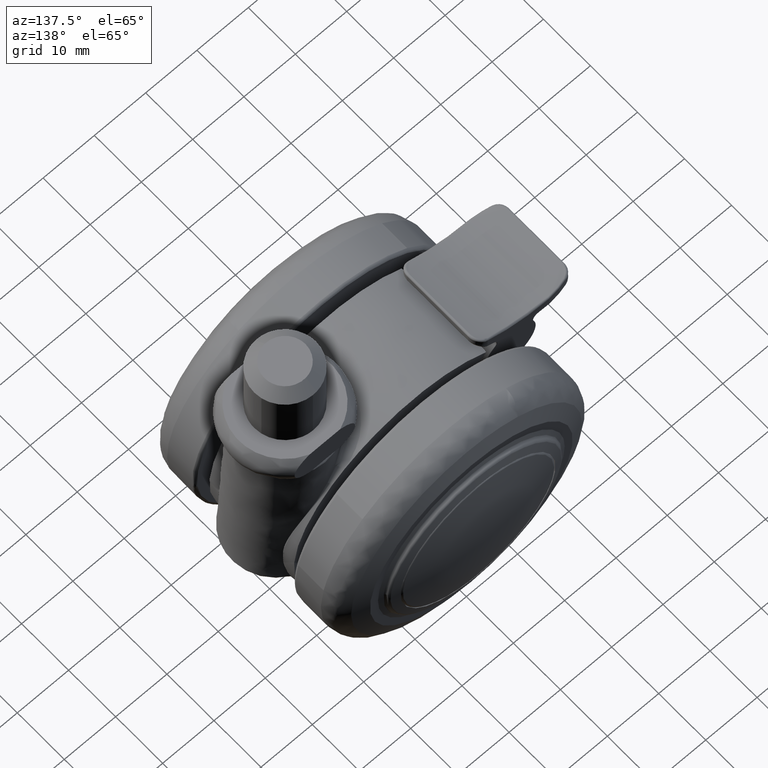
[diagram: clean part render]
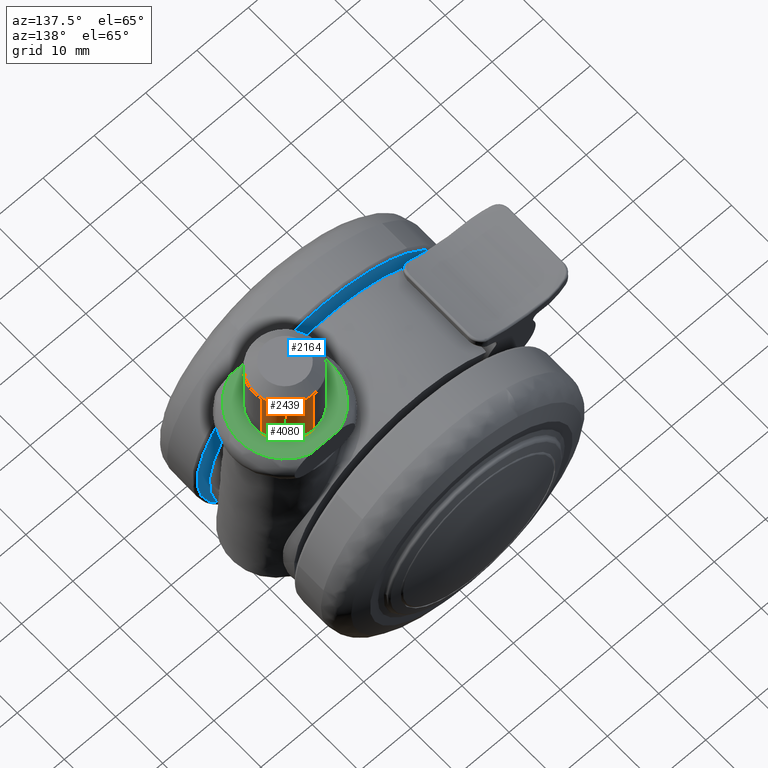
[diagram: same view with three faces highlighted in distinct colors, each labeled with its STEP entity id]
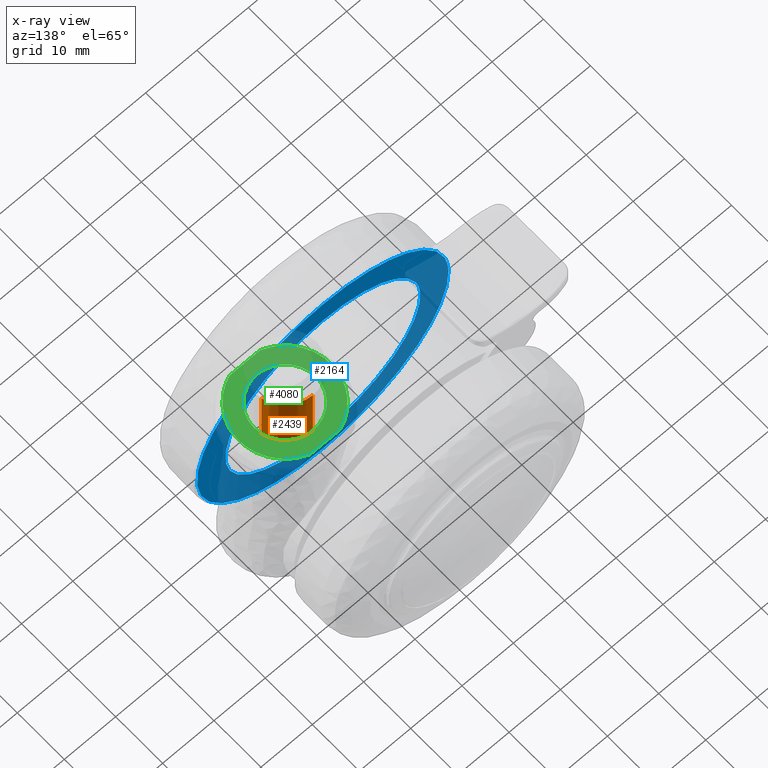
[diagram: x-ray of the same camera — body ghosted, the three highlighted faces saturated]
A machine part, auxiliary view with three faces highlighted in distinct colors.
The next image is the same camera in x-ray (body ghosted, the three faces saturated) — at least one of them is partly hidden behind the body in this view.
Their STEP definitions:

[orange] entity #2439 — the highlighted face is a freeform B-spline surface patch.
#2250=CARTESIAN_POINT('',(22.845308919070330,1.353648270651160,44.500000000000000));
#2251=VERTEX_POINT('',#2250);
#2314=CARTESIAN_POINT('',(17.052359213184239,5.999771538383330,44.500000000000000));
#2315=VERTEX_POINT('',#2314);
#2331=CARTESIAN_POINT('',(17.052359213090241,5.999771538384151,32.500000002522903));
#2332=VERTEX_POINT('',#2331);
#2333=CARTESIAN_POINT('',(17.052359213184239,5.999771538383330,44.500000000000000));
#2334=CARTESIAN_POINT('',(17.052359213090241,5.999771538384151,32.500000002522903));
#2335=QUASI_UNIFORM_CURVE('',1,(#2333,#2334),.UNSPECIFIED.,.F.,.U.);
#2336=EDGE_CURVE('',#2315,#2332,#2335,.T.);
#2372=CARTESIAN_POINT('',(22.845308919053540,1.353648270723666,32.500000002522903));
#2373=VERTEX_POINT('',#2372);
#2387=CARTESIAN_POINT('',(22.845308919070330,1.353648270651160,44.500000000000000));
#2388=CARTESIAN_POINT('',(22.845308919053540,1.353648270723666,32.500000002522903));
#2389=QUASI_UNIFORM_CURVE('',1,(#2387,#2388),.UNSPECIFIED.,.F.,.U.);
#2390=EDGE_CURVE('',#2251,#2373,#2389,.T.);
#2395=CARTESIAN_POINT('',(17.052359212990240,5.999771538385023,44.799999999936936));
#2396=CARTESIAN_POINT('',(21.778918510904578,5.958523480286943,44.799999999936936));
#2397=CARTESIAN_POINT('',(22.845308919071552,1.353648270645879,44.799999999936929));
#2398=CARTESIAN_POINT('',(17.052359212990240,5.999771538385023,32.192500002587543));
#2399=CARTESIAN_POINT('',(21.778918510904578,5.958523480286943,32.192500002587536));
#2400=CARTESIAN_POINT('',(22.845308919071552,1.353648270645879,32.192500002587551));
#2408=(BOUNDED_SURFACE()B_SPLINE_SURFACE(2,1,((#2395,#2398),(#2396,#2399),(#2397,#2400)),.UNSPECIFIED.,.F.,.F.,.U.)B_SPLINE_SURFACE_WITH_KNOTS((3,3),(2,2),(0.0,8.314027998213579),(0.0,12.607499997349390),.UNSPECIFIED.)GEOMETRIC_REPRESENTATION_ITEM()RATIONAL_B_SPLINE_SURFACE(((1.0,1.0),(0.753969696196700,0.753969696196700),(0.921270302782944,0.921270302782944)))REPRESENTATION_ITEM('')SURFACE());
#2409=CARTESIAN_POINT('',(17.052359213184246,5.999771538383330,44.500000000000007));
#2410=CARTESIAN_POINT('',(21.778918510966722,5.958523479980717,44.499999999999986));
#2411=CARTESIAN_POINT('',(22.845308919070323,1.353648270651160,44.500000000000000));
#2419=(BOUNDED_CURVE()B_SPLINE_CURVE(2,(#2409,#2410,#2411),.UNSPECIFIED.,.F.,.U.)B_SPLINE_CURVE_WITH_KNOTS((3,3),(0.251539894346378,0.461422971784314),.UNSPECIFIED.)CURVE()GEOMETRIC_REPRESENTATION_ITEM()RATIONAL_B_SPLINE_CURVE((0.996414028074044,0.753549905445378,0.923556557442306))REPRESENTATION_ITEM(''));
#2420=EDGE_CURVE('',#2315,#2251,#2419,.T.);
#2421=ORIENTED_EDGE('',*,*,#2420,.T.);
#2422=ORIENTED_EDGE('',*,*,#2390,.T.);
#2423=CARTESIAN_POINT('',(22.845308919053537,1.353648270723666,32.500000002522910));
#2424=CARTESIAN_POINT('',(21.778918510811756,5.958523480130185,32.500000002522910));
#2425=CARTESIAN_POINT('',(17.052359213090245,5.999771538384151,32.500000002522903));
#2433=(BOUNDED_CURVE()B_SPLINE_CURVE(2,(#2423,#2424,#2425),.UNSPECIFIED.,.F.,.U.)B_SPLINE_CURVE_WITH_KNOTS((3,3),(0.038577028219736,0.248460105659141),.UNSPECIFIED.)CURVE()GEOMETRIC_REPRESENTATION_ITEM()RATIONAL_B_SPLINE_CURVE((0.923556557435745,0.753549905445593,0.996414028086817))REPRESENTATION_ITEM(''));
#2434=EDGE_CURVE('',#2373,#2332,#2433,.T.);
#2435=ORIENTED_EDGE('',*,*,#2434,.T.);
#2436=ORIENTED_EDGE('',*,*,#2336,.F.);
#2437=EDGE_LOOP('',(#2421,#2422,#2435,#2436));
#2438=FACE_OUTER_BOUND('',#2437,.T.);
#2439=ADVANCED_FACE('',(#2438),#2408,.T.);

[blue] entity #2164 — the highlighted face is a freeform B-spline surface patch.
#692=CARTESIAN_POINT('',(18.867181923865932,-10.499999999999890,-2.242642693717743));
#693=VERTEX_POINT('',#692);
#694=CARTESIAN_POINT('',(0.0,-10.500000000000000,19.0));
#695=VERTEX_POINT('',#694);
#696=CARTESIAN_POINT('',(18.867181923865925,-10.499999999999892,-2.242642693717743));
#697=CARTESIAN_POINT('',(19.000000000000007,-10.499999999999998,-1.125254349962167));
#698=CARTESIAN_POINT('',(19.0,-10.500000000000000,1.789254E-015));
#699=CARTESIAN_POINT('',(18.999999999999993,-10.500000000000002,19.000000000000011));
#700=CARTESIAN_POINT('',(0.0,-10.500000000000000,19.0));
#708=(BOUNDED_CURVE()B_SPLINE_CURVE(2,(#696,#697,#698,#699,#700),.UNSPECIFIED.,.F.,.U.)B_SPLINE_CURVE_WITH_KNOTS((3,2,3),(0.229562543068686,0.250000000000000,0.500000000000000),.UNSPECIFIED.)CURVE()GEOMETRIC_REPRESENTATION_ITEM()RATIONAL_B_SPLINE_CURVE((0.956026890514738,0.976056029820104,1.0,0.707106781186548,1.0))REPRESENTATION_ITEM(''));
#709=EDGE_CURVE('',#693,#695,#708,.T.);
#750=CARTESIAN_POINT('',(-18.964562474849782,-10.500000000000339,1.159900916916154));
#751=VERTEX_POINT('',#750);
#757=CARTESIAN_POINT('',(0.0,-10.500000000000000,19.0));
#758=CARTESIAN_POINT('',(-17.873435415548638,-10.500000000000002,19.0));
#759=CARTESIAN_POINT('',(-18.964562474849775,-10.500000000000339,1.159900916916153));
#767=(BOUNDED_CURVE()B_SPLINE_CURVE(2,(#757,#758,#759),.UNSPECIFIED.,.F.,.U.)B_SPLINE_CURVE_WITH_KNOTS((3,3),(0.500000000000000,0.739333156349081),.UNSPECIFIED.)CURVE()GEOMETRIC_REPRESENTATION_ITEM()RATIONAL_B_SPLINE_CURVE((1.0,0.719603765872537,0.976072457682047))REPRESENTATION_ITEM(''));
#768=EDGE_CURVE('',#695,#751,#767,.T.);
#791=CARTESIAN_POINT('',(0.0,-10.500000000000000,-19.0));
#792=VERTEX_POINT('',#791);
#793=CARTESIAN_POINT('',(0.0,-10.500000000000000,-19.0));
#794=CARTESIAN_POINT('',(16.875322986979157,-10.499999999999998,-19.000000000000004));
#795=CARTESIAN_POINT('',(18.867181923865925,-10.499999999999892,-2.242642693717743));
#803=(BOUNDED_CURVE()B_SPLINE_CURVE(2,(#793,#794,#795),.UNSPECIFIED.,.F.,.U.)B_SPLINE_CURVE_WITH_KNOTS((3,3),(0.0,0.229562543068686),.UNSPECIFIED.)CURVE()GEOMETRIC_REPRESENTATION_ITEM()RATIONAL_B_SPLINE_CURVE((1.0,0.731050751366444,0.956026890514738))REPRESENTATION_ITEM(''));
#804=EDGE_CURVE('',#792,#693,#803,.T.);
#806=CARTESIAN_POINT('',(-18.964562474849775,-10.500000000000339,1.159900916916153));
#807=CARTESIAN_POINT('',(-18.999999999999996,-10.500000000000004,0.580491805641472));
#808=CARTESIAN_POINT('',(-19.0,-10.500000000000000,1.789254E-015));
#809=CARTESIAN_POINT('',(-18.999999999999993,-10.500000000000002,-18.999999999999993));
#810=CARTESIAN_POINT('',(0.0,-10.500000000000000,-19.0));
#818=(BOUNDED_CURVE()B_SPLINE_CURVE(2,(#806,#807,#808,#809,#810),.UNSPECIFIED.,.F.,.U.)B_SPLINE_CURVE_WITH_KNOTS((3,2,3),(0.739333156349081,0.750000000000000,1.0),.UNSPECIFIED.)CURVE()GEOMETRIC_REPRESENTATION_ITEM()RATIONAL_B_SPLINE_CURVE((0.976072457682047,0.987503015314010,1.0,0.707106781186548,1.0))REPRESENTATION_ITEM(''));
#819=EDGE_CURVE('',#751,#792,#818,.T.);
#1646=CARTESIAN_POINT('',(24.440359050783059,-10.500000000000000,-1.708464666819471));
#1647=VERTEX_POINT('',#1646);
#1661=CARTESIAN_POINT('',(0.0,-10.500000000000000,24.500000000000000));
#1662=VERTEX_POINT('',#1661);
#1663=CARTESIAN_POINT('',(24.440359050783059,-10.500000000000005,-1.708464666819471));
#1664=CARTESIAN_POINT('',(24.499999999999996,-10.500000000000002,-0.855273339236765));
#1665=CARTESIAN_POINT('',(24.500000000000000,-10.500000000000000,1.789254E-015));
#1666=CARTESIAN_POINT('',(24.499999999999993,-10.500000000000000,24.499999999999993));
#1667=CARTESIAN_POINT('',(0.0,-10.500000000000000,24.500000000000000));
#1675=(BOUNDED_CURVE()B_SPLINE_CURVE(2,(#1663,#1664,#1665,#1666,#1667),.UNSPECIFIED.,.F.,.U.)B_SPLINE_CURVE_WITH_KNOTS((3,2,3),(0.237833686530839,0.250000000000000,0.500000000000000),.UNSPECIFIED.)CURVE()GEOMETRIC_REPRESENTATION_ITEM()RATIONAL_B_SPLINE_CURVE((0.972879876377981,0.985746277147696,1.0,0.707106781186547,1.0))REPRESENTATION_ITEM(''));
#1676=EDGE_CURVE('',#1647,#1662,#1675,.T.);
#1678=CARTESIAN_POINT('',(-24.498065624780690,-10.500000000000000,0.307867977774401));
#1679=VERTEX_POINT('',#1678);
#1680=CARTESIAN_POINT('',(0.0,-10.500000000000000,24.500000000000000));
#1681=CARTESIAN_POINT('',(-24.194042282517618,-10.500000000000000,24.499999999999986));
#1682=CARTESIAN_POINT('',(-24.498065624780693,-10.500000000000005,0.307867977774401));
#1690=(BOUNDED_CURVE()B_SPLINE_CURVE(2,(#1680,#1681,#1682),.UNSPECIFIED.,.F.,.U.)B_SPLINE_CURVE_WITH_KNOTS((3,3),(0.500000000000000,0.747784295920190),.UNSPECIFIED.)CURVE()GEOMETRIC_REPRESENTATION_ITEM()RATIONAL_B_SPLINE_CURVE((1.0,0.709702639986042,0.994854295640473))REPRESENTATION_ITEM(''));
#1691=EDGE_CURVE('',#1662,#1679,#1690,.T.);
#1738=CARTESIAN_POINT('',(0.0,-10.500000000000000,-24.500000000000000));
#1739=VERTEX_POINT('',#1738);
#1740=CARTESIAN_POINT('',(-24.498065624780693,-10.500000000000005,0.307867977774401));
#1741=CARTESIAN_POINT('',(-24.500000000000000,-10.499999999999998,0.153940065908422));
#1742=CARTESIAN_POINT('',(-24.500000000000000,-10.500000000000000,1.789254E-015));
#1743=CARTESIAN_POINT('',(-24.499999999999993,-10.500000000000000,-24.499999999999993));
#1744=CARTESIAN_POINT('',(0.0,-10.500000000000000,-24.500000000000000));
#1752=(BOUNDED_CURVE()B_SPLINE_CURVE(2,(#1740,#1741,#1742,#1743,#1744),.UNSPECIFIED.,.F.,.U.)B_SPLINE_CURVE_WITH_KNOTS((3,2,3),(0.747784295920190,0.750000000000000,1.0),.UNSPECIFIED.)CURVE()GEOMETRIC_REPRESENTATION_ITEM()RATIONAL_B_SPLINE_CURVE((0.994854295640473,0.997404141200506,1.0,0.707106781186547,1.0))REPRESENTATION_ITEM(''));
#1753=EDGE_CURVE('',#1679,#1739,#1752,.T.);
#1755=CARTESIAN_POINT('',(0.0,-10.500000000000000,-24.500000000000000));
#1756=CARTESIAN_POINT('',(22.847152757460137,-10.500000000000000,-24.499999999999996));
#1757=CARTESIAN_POINT('',(24.440359050783062,-10.500000000000007,-1.708464666819470));
#1765=(BOUNDED_CURVE()B_SPLINE_CURVE(2,(#1755,#1756,#1757),.UNSPECIFIED.,.F.,.U.)B_SPLINE_CURVE_WITH_KNOTS((3,3),(0.0,0.237833686530839),.UNSPECIFIED.)CURVE()GEOMETRIC_REPRESENTATION_ITEM()RATIONAL_B_SPLINE_CURVE((1.0,0.721360504038852,0.972879876377981))REPRESENTATION_ITEM(''));
#1766=EDGE_CURVE('',#1739,#1647,#1765,.T.);
#2147=CARTESIAN_POINT('',(-26.945379779676859,-10.500000000000000,26.947549905028499));
#2148=CARTESIAN_POINT('',(-26.945379779676859,-10.500000000000000,-26.947551219310910));
#2149=CARTESIAN_POINT('',(26.944520475682069,-10.500000000000000,26.947549905028499));
#2150=CARTESIAN_POINT('',(26.944520475682069,-10.500000000000000,-26.947551219310910));
#2151=B_SPLINE_SURFACE_WITH_KNOTS('',1,1,((#2147,#2149),(#2148,#2150)),.UNSPECIFIED.,.F.,.F.,.U.,(2,2),(2,2),(0.0,53.895101124339412),(0.0,53.889900255358917),.UNSPECIFIED.);
#2152=ORIENTED_EDGE('',*,*,#1753,.F.);
#2153=ORIENTED_EDGE('',*,*,#1691,.F.);
#2154=ORIENTED_EDGE('',*,*,#1676,.F.);
#2155=ORIENTED_EDGE('',*,*,#1766,.F.);
#2156=EDGE_LOOP('',(#2152,#2153,#2154,#2155));
#2157=FACE_OUTER_BOUND('',#2156,.T.);
#2158=ORIENTED_EDGE('',*,*,#768,.T.);
#2159=ORIENTED_EDGE('',*,*,#819,.T.);
#2160=ORIENTED_EDGE('',*,*,#804,.T.);
#2161=ORIENTED_EDGE('',*,*,#709,.T.);
#2162=EDGE_LOOP('',(#2158,#2159,#2160,#2161));
#2163=FACE_BOUND('',#2162,.T.);
#2164=ADVANCED_FACE('',(#2157,#2163),#2151,.F.);

[green] entity #4080 — the highlighted face is a freeform B-spline surface patch.
#2331=CARTESIAN_POINT('',(17.052359213090241,5.999771538384151,32.500000002522903));
#2332=VERTEX_POINT('',#2331);
#2338=CARTESIAN_POINT('',(11.0,-3.459513E-015,32.500000002522903));
#2339=VERTEX_POINT('',#2338);
#2340=CARTESIAN_POINT('',(17.052359213090241,5.999771538384151,32.500000002522903));
#2341=CARTESIAN_POINT('',(17.026180105024213,5.999999999999997,32.500000002522903));
#2342=CARTESIAN_POINT('',(17.0,5.999999999999996,32.500000002522903));
#2343=CARTESIAN_POINT('',(11.000000000000002,5.999999999999996,32.500000002522903));
#2344=CARTESIAN_POINT('',(11.0,-3.459513E-015,32.500000002522903));
#2352=(BOUNDED_CURVE()B_SPLINE_CURVE(2,(#2340,#2341,#2342,#2343,#2344),.UNSPECIFIED.,.F.,.U.)B_SPLINE_CURVE_WITH_KNOTS((3,2,3),(0.248460105659141,0.250000000000000,0.500000000000000),.UNSPECIFIED.)CURVE()GEOMETRIC_REPRESENTATION_ITEM()RATIONAL_B_SPLINE_CURVE((0.996414028086817,0.998195901559493,1.0,0.707106781186548,1.0))REPRESENTATION_ITEM(''));
#2353=EDGE_CURVE('',#2332,#2339,#2352,.T.);
#2355=CARTESIAN_POINT('',(23.0,-3.459513E-015,32.500000002522903));
#2356=VERTEX_POINT('',#2355);
#2357=CARTESIAN_POINT('',(11.0,-3.459513E-015,32.500000002522903));
#2358=CARTESIAN_POINT('',(11.000000000000002,-6.000000000000004,32.500000002522903));
#2359=CARTESIAN_POINT('',(17.0,-6.000000000000004,32.500000002522903));
#2360=CARTESIAN_POINT('',(22.999999999999993,-6.000000000000004,32.500000002522903));
#2361=CARTESIAN_POINT('',(23.0,-3.459513E-015,32.500000002522903));
#2369=(BOUNDED_CURVE()B_SPLINE_CURVE(2,(#2357,#2358,#2359,#2360,#2361),.UNSPECIFIED.,.F.,.U.)B_SPLINE_CURVE_WITH_KNOTS((3,2,3),(0.500000000000000,0.750000000000000,1.0),.UNSPECIFIED.)CURVE()GEOMETRIC_REPRESENTATION_ITEM()RATIONAL_B_SPLINE_CURVE((1.0,0.707106781186548,1.0,0.707106781186548,1.0))REPRESENTATION_ITEM(''));
#2370=EDGE_CURVE('',#2339,#2356,#2369,.T.);
#2372=CARTESIAN_POINT('',(22.845308919053540,1.353648270723666,32.500000002522903));
#2373=VERTEX_POINT('',#2372);
#2374=CARTESIAN_POINT('',(23.0,-3.459513E-015,32.500000002522903));
#2375=CARTESIAN_POINT('',(22.999999999999996,0.685662964159317,32.500000002522903));
#2376=CARTESIAN_POINT('',(22.845308919053544,1.353648270723666,32.500000002522903));
#2384=(BOUNDED_CURVE()B_SPLINE_CURVE(2,(#2374,#2375,#2376),.UNSPECIFIED.,.F.,.U.)B_SPLINE_CURVE_WITH_KNOTS((3,3),(0.0,0.038577028219736),.UNSPECIFIED.)CURVE()GEOMETRIC_REPRESENTATION_ITEM()RATIONAL_B_SPLINE_CURVE((1.0,0.954804200129856,0.923556557435745))REPRESENTATION_ITEM(''));
#2385=EDGE_CURVE('',#2356,#2373,#2384,.T.);
#2423=CARTESIAN_POINT('',(22.845308919053537,1.353648270723666,32.500000002522910));
#2424=CARTESIAN_POINT('',(21.778918510811756,5.958523480130185,32.500000002522910));
#2425=CARTESIAN_POINT('',(17.052359213090245,5.999771538384151,32.500000002522903));
#2433=(BOUNDED_CURVE()B_SPLINE_CURVE(2,(#2423,#2424,#2425),.UNSPECIFIED.,.F.,.U.)B_SPLINE_CURVE_WITH_KNOTS((3,3),(0.038577028219736,0.248460105659141),.UNSPECIFIED.)CURVE()GEOMETRIC_REPRESENTATION_ITEM()RATIONAL_B_SPLINE_CURVE((0.923556557435745,0.753549905445593,0.996414028086817))REPRESENTATION_ITEM(''));
#2434=EDGE_CURVE('',#2373,#2332,#2433,.T.);
#3686=CARTESIAN_POINT('',(14.041962204574659,8.500000000000000,32.500000000000000));
#3687=VERTEX_POINT('',#3686);
#3688=CARTESIAN_POINT('',(19.958037793544850,8.499999994596450,32.500000005045798));
#3689=VERTEX_POINT('',#3688);
#3690=CARTESIAN_POINT('',(14.041962204574659,8.500000000000000,32.500000000000000));
#3691=CARTESIAN_POINT('',(19.958037793544850,8.499999994596450,32.500000005045798));
#3692=QUASI_UNIFORM_CURVE('',1,(#3690,#3691),.UNSPECIFIED.,.F.,.U.);
#3693=EDGE_CURVE('',#3687,#3689,#3692,.T.);
#3835=CARTESIAN_POINT('',(14.041962204574659,-8.500000000000000,32.500000000000000));
#3836=VERTEX_POINT('',#3835);
#3909=CARTESIAN_POINT('',(19.958037795425351,-8.500000000000000,32.500000000000000));
#3910=VERTEX_POINT('',#3909);
#3971=CARTESIAN_POINT('',(14.041962204574659,-8.500000000000000,32.500000000000000));
#3972=CARTESIAN_POINT('',(19.958037795425351,-8.500000000000000,32.500000000000000));
#3973=QUASI_UNIFORM_CURVE('',1,(#3971,#3972),.UNSPECIFIED.,.F.,.U.);
#3974=EDGE_CURVE('',#3836,#3910,#3973,.T.);
#4030=CARTESIAN_POINT('',(19.958037793544850,8.499999994596452,32.500000005045798));
#4031=CARTESIAN_POINT('',(25.999999305343277,6.397370522784126,32.500000005045813));
#4032=CARTESIAN_POINT('',(25.999999305343270,0.0,32.500000005045798));
#4033=CARTESIAN_POINT('',(25.999999305343277,-6.397370522784093,32.500000005045813));
#4034=CARTESIAN_POINT('',(19.958037795425351,-8.500000000000000,32.500000000000000));
#4042=(BOUNDED_CURVE()B_SPLINE_CURVE(2,(#4030,#4031,#4032,#4033,#4034),.UNSPECIFIED.,.F.,.U.)B_SPLINE_CURVE_WITH_KNOTS((3,2,3),(0.0,0.500000000000000,1.0),.UNSPECIFIED.)CURVE()GEOMETRIC_REPRESENTATION_ITEM()RATIONAL_B_SPLINE_CURVE((1.0,0.815067755256454,1.0,0.815067755256454,1.0))REPRESENTATION_ITEM(''));
#4043=EDGE_CURVE('',#3689,#3910,#4042,.T.);
#4049=CARTESIAN_POINT('',(7.100900967911564,-9.349149967050700,32.500000002522903));
#4050=CARTESIAN_POINT('',(26.899099675818551,-9.349149967050700,32.500000002522903));
#4051=CARTESIAN_POINT('',(7.100900967911564,9.349150423026234,32.500000002522903));
#4052=CARTESIAN_POINT('',(26.899099675818551,9.349150423026234,32.500000002522903));
#4053=B_SPLINE_SURFACE_WITH_KNOTS('',1,1,((#4049,#4051),(#4050,#4052)),.UNSPECIFIED.,.F.,.F.,.U.,(2,2),(2,2),(0.0,19.798198707906980),(0.0,18.698300390076930),.UNSPECIFIED.);
#4054=ORIENTED_EDGE('',*,*,#3693,.F.);
#4055=CARTESIAN_POINT('',(14.041962204574659,-8.500000000000000,32.500000000000000));
#4056=CARTESIAN_POINT('',(8.000000694656734,-6.397370522784104,32.500000005045798));
#4057=CARTESIAN_POINT('',(8.000000694656732,0.0,32.500000005045798));
#4058=CARTESIAN_POINT('',(8.000000694656734,6.397370522784100,32.500000005045798));
#4059=CARTESIAN_POINT('',(14.041962204574659,8.500000000000000,32.500000000000000));
#4067=(BOUNDED_CURVE()B_SPLINE_CURVE(2,(#4055,#4056,#4057,#4058,#4059),.UNSPECIFIED.,.F.,.U.)B_SPLINE_CURVE_WITH_KNOTS((3,2,3),(0.0,0.500000000000000,1.0),.UNSPECIFIED.)CURVE()GEOMETRIC_REPRESENTATION_ITEM()RATIONAL_B_SPLINE_CURVE((1.0,0.815067755256454,1.0,0.815067755256454,1.0))REPRESENTATION_ITEM(''));
#4068=EDGE_CURVE('',#3836,#3687,#4067,.T.);
#4069=ORIENTED_EDGE('',*,*,#4068,.F.);
#4070=ORIENTED_EDGE('',*,*,#3974,.T.);
#4071=ORIENTED_EDGE('',*,*,#4043,.F.);
#4072=EDGE_LOOP('',(#4054,#4069,#4070,#4071));
#4073=FACE_OUTER_BOUND('',#4072,.T.);
#4074=ORIENTED_EDGE('',*,*,#2370,.F.);
#4075=ORIENTED_EDGE('',*,*,#2353,.F.);
#4076=ORIENTED_EDGE('',*,*,#2434,.F.);
#4077=ORIENTED_EDGE('',*,*,#2385,.F.);
#4078=EDGE_LOOP('',(#4074,#4075,#4076,#4077));
#4079=FACE_BOUND('',#4078,.T.);
#4080=ADVANCED_FACE('',(#4073,#4079),#4053,.T.);